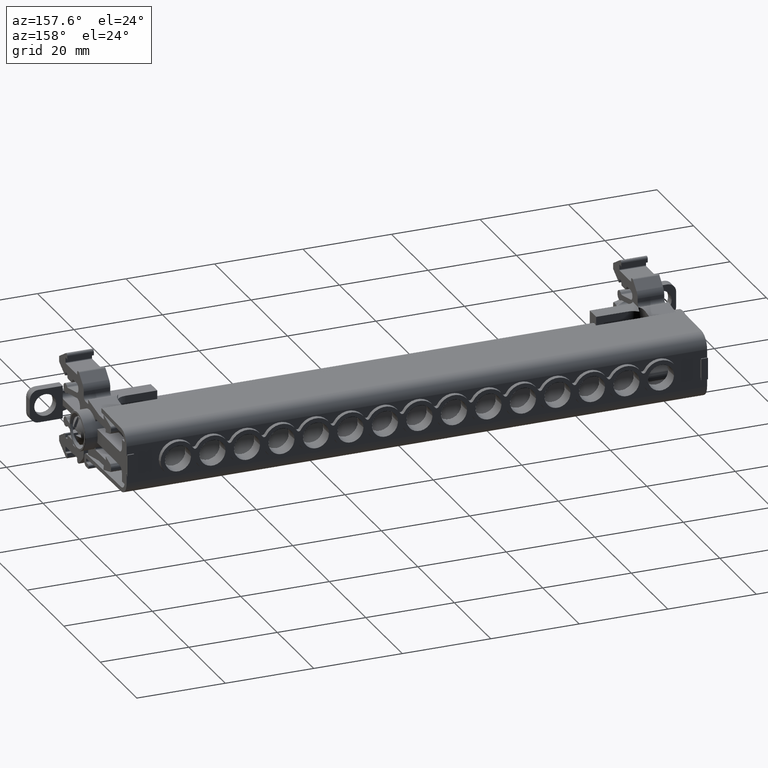
[diagram: clean part render]
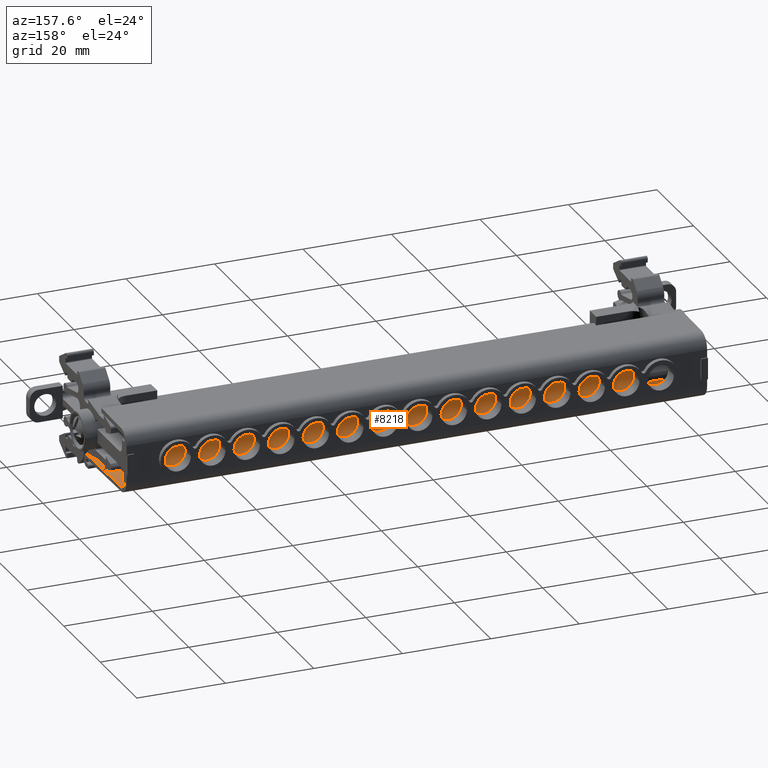
[diagram: same view with one face highlighted and labeled with its STEP entity id]
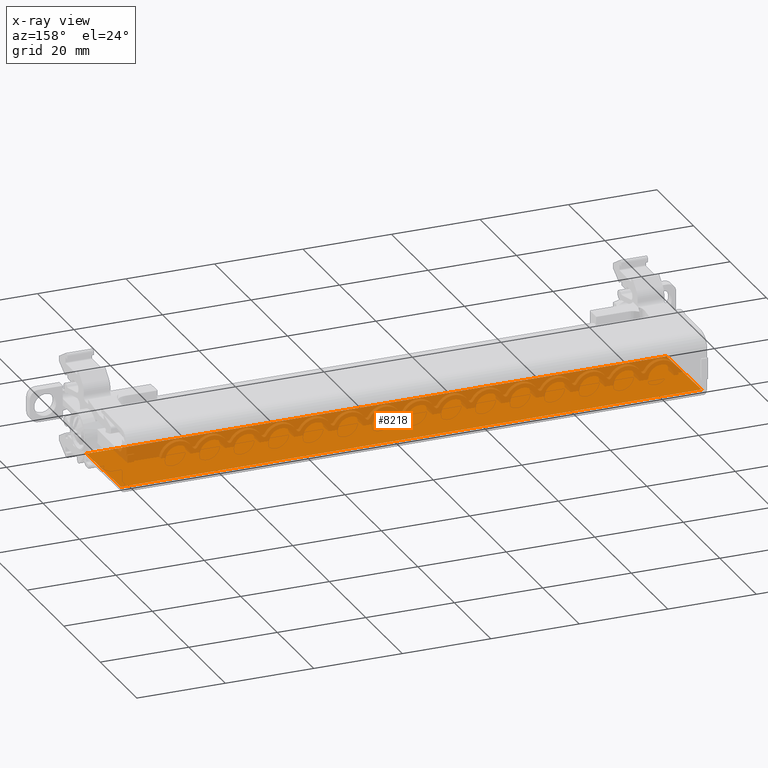
[diagram: x-ray of the same camera — body ghosted, the highlighted face saturated]
A machine part, auxiliary view. The second image highlights one B-rep face of the part: STEP entity #8218.
The next image is the same camera in x-ray: the body ghosted, the highlighted face saturated — about 32% of this face is hidden behind the body in this view.
In plain terms, the highlighted planar face has unit normal (-0, -0.0175, 0.9998).
Its self-contained STEP definition (entity closure, byte-faithful):
#5470 = AXIS2_PLACEMENT_3D ( 'NONE', #8807, #8826, #8846 ) ;
#6258 = VECTOR ( 'NONE', #10041, 1000.000000000000100 ) ;
#7482 = EDGE_CURVE ( 'NONE', #33095, #33017, #20342, .T. ) ;
#7519 = EDGE_CURVE ( 'NONE', #33050, #33075, #20472, .T. ) ;
#7629 = EDGE_CURVE ( 'NONE', #33050, #33017, #30062, .T. ) ;
#8218 = ADVANCED_FACE ( 'NONE', ( #8834 ), #8835, .T. ) ;
#8439 = EDGE_CURVE ( 'NONE', #33075, #33095, #9955, .T. ) ;
#8807 = CARTESIAN_POINT ( 'NONE',  ( -82.65664649360071800, -43.78615311471471500, 89.46430095059565700 ) ) ;
#8826 = DIRECTION ( 'NONE',  ( -2.274379583080954800E-015, -0.01745240644057603100, 0.9998476951563337600 ) ) ;
#8834 = FACE_OUTER_BOUND ( 'NONE', #28207, .T. ) ;
#8835 = PLANE ( 'NONE',  #5470 ) ;
#8846 = DIRECTION ( 'NONE',  ( -1.127746322783797200E-014, 0.9998476951563337600, 0.01745240644057603100 ) ) ;
#9955 = LINE ( 'NONE', #10015, #6258 ) ;
#10015 = CARTESIAN_POINT ( 'NONE',  ( -82.60658967541760900, -43.78615311471471500, 89.46430095059565700 ) ) ;
#10041 = DIRECTION ( 'NONE',  ( -1.127746322783792900E-014, 0.9998476951563337600, 0.01745240644057602700 ) ) ;
#11705 = VECTOR ( 'NONE', #20326, 1000.000000000000000 ) ;
#11729 = VECTOR ( 'NONE', #20473, 1000.000000000000000 ) ;
#11965 = VECTOR ( 'NONE', #30142, 1000.000000000000100 ) ;
#20326 = DIRECTION ( 'NONE',  ( 1.000000000000000000, 1.123605221868000100E-014, 2.470852055923969000E-015 ) ) ;
#20342 = LINE ( 'NONE', #20347, #11705 ) ;
#20347 = CARTESIAN_POINT ( 'NONE',  ( -82.65664649360091700, -24.76194074849428600, 89.79636981271907800 ) ) ;
#20472 = LINE ( 'NONE', #20495, #11729 ) ;
#20473 = DIRECTION ( 'NONE',  ( -1.000000000000000000, -1.123605221868005200E-014, -2.470852055923969000E-015 ) ) ;
#20495 = CARTESIAN_POINT ( 'NONE',  ( -44.87096467574441800, -44.00701231195409900, 89.46044583896723200 ) ) ;
#21499 = ORIENTED_EDGE ( 'NONE', *, *, #7482, .F. ) ;
#21510 = ORIENTED_EDGE ( 'NONE', *, *, #7629, .T. ) ;
#21540 = ORIENTED_EDGE ( 'NONE', *, *, #8439, .F. ) ;
#21542 = ORIENTED_EDGE ( 'NONE', *, *, #7519, .F. ) ;
#27029 = CARTESIAN_POINT ( 'NONE',  ( 48.59443305074157100, -24.76194074849281200, 89.79636981271939100 ) ) ;
#27077 = CARTESIAN_POINT ( 'NONE',  ( -82.60658967541760900, -44.00701231195452600, 89.46044583896713200 ) ) ;
#27102 = CARTESIAN_POINT ( 'NONE',  ( 48.59443305074179200, -44.00701231195305500, 89.46044583896745900 ) ) ;
#27110 = CARTESIAN_POINT ( 'NONE',  ( -82.60658967541782300, -24.76194074849428600, 89.79636981271907800 ) ) ;
#28207 = EDGE_LOOP ( 'NONE', ( #21542, #21510, #21499, #21540 ) ) ;
#30062 = LINE ( 'NONE', #30098, #11965 ) ;
#30098 = CARTESIAN_POINT ( 'NONE',  ( 48.59443305074179900, -44.22502056476172800, 89.45664049075904200 ) ) ;
#30142 = DIRECTION ( 'NONE',  ( -1.152120223345890300E-014, 0.9998476951563337600, 0.01745240644057602700 ) ) ;
#33017 = VERTEX_POINT ( 'NONE', #27029 ) ;
#33050 = VERTEX_POINT ( 'NONE', #27102 ) ;
#33075 = VERTEX_POINT ( 'NONE', #27077 ) ;
#33095 = VERTEX_POINT ( 'NONE', #27110 ) ;